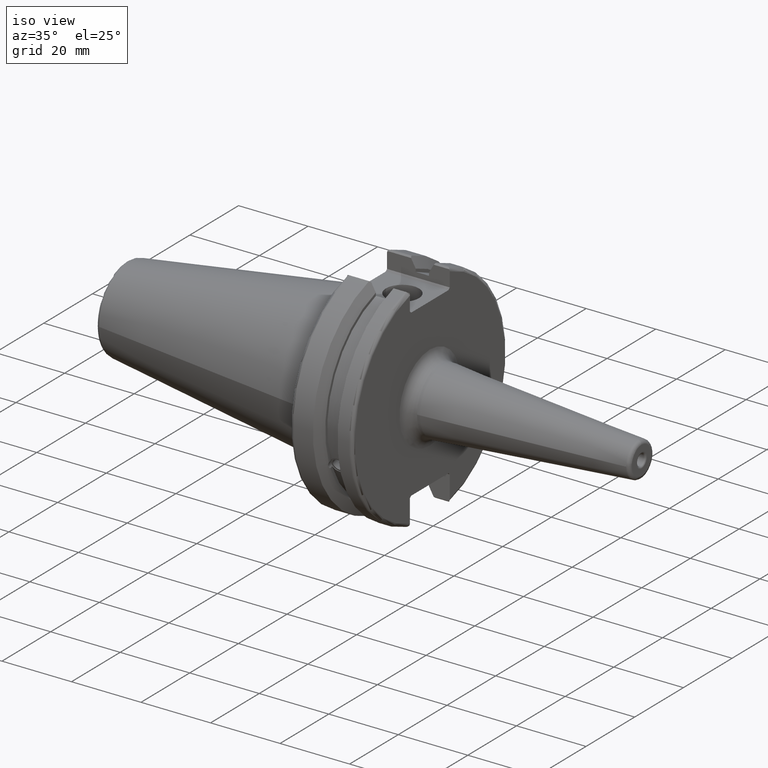
[diagram: clean part render]
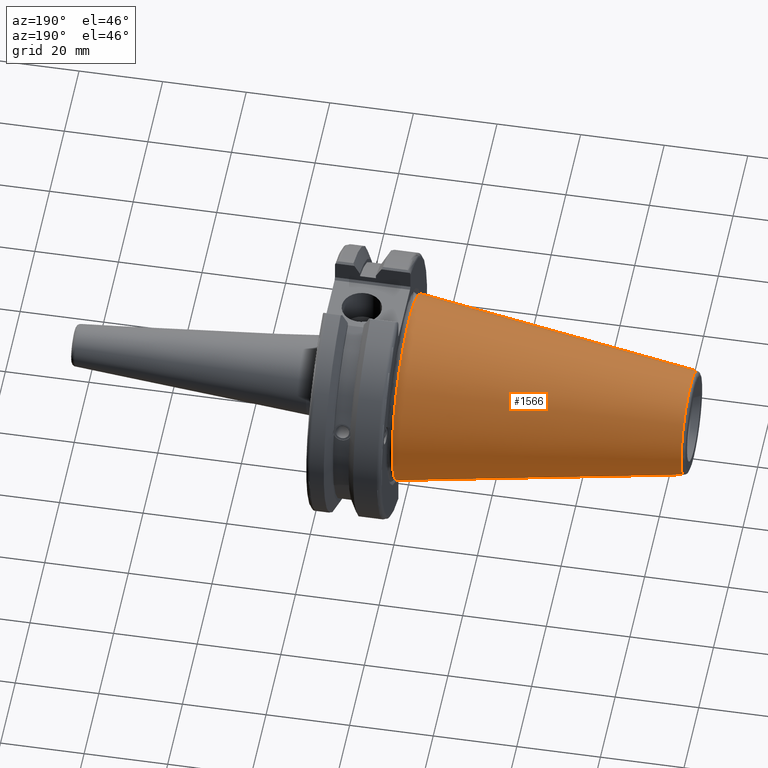
[diagram: tour spotlight — one face highlighted and labeled with its STEP entity id]
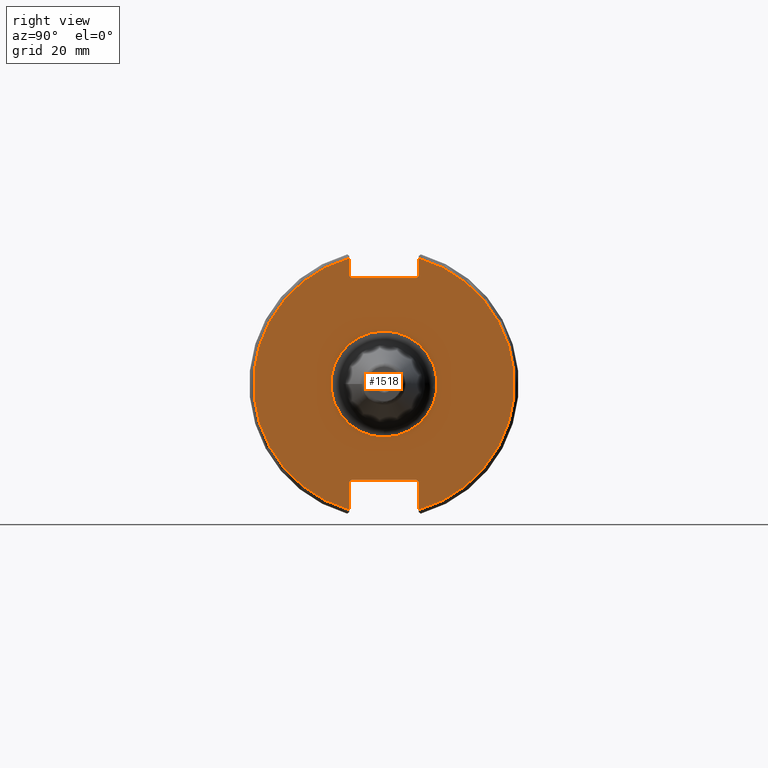
[diagram: tour spotlight — one face highlighted and labeled with its STEP entity id]
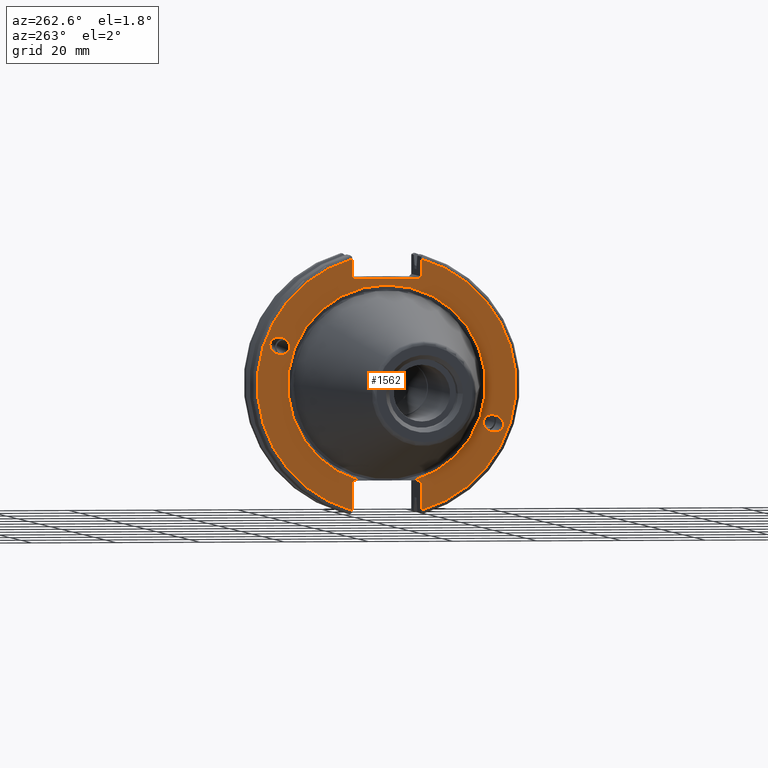
[diagram: tour spotlight — one face highlighted and labeled with its STEP entity id]
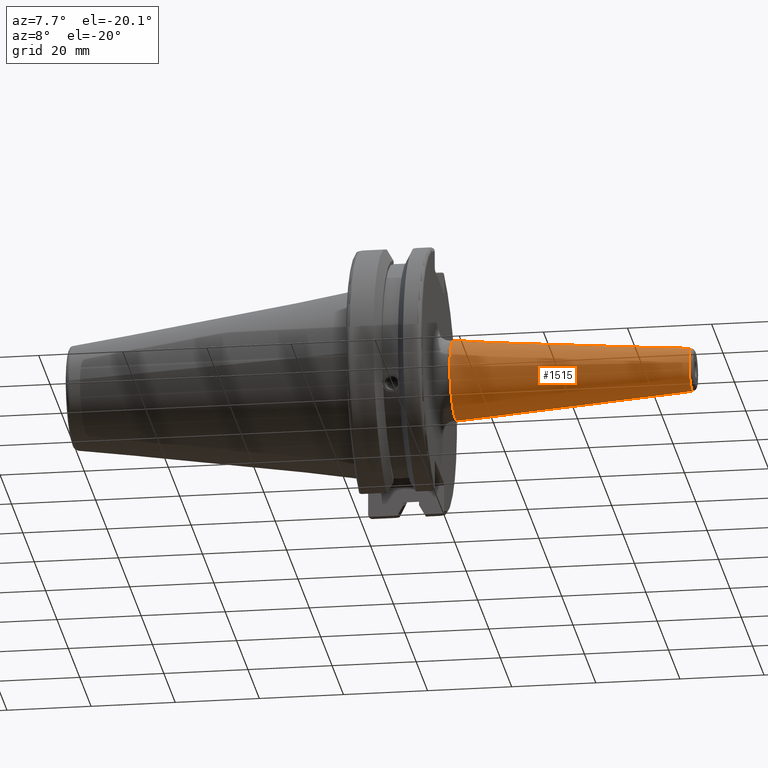
[diagram: tour spotlight — one face highlighted and labeled with its STEP entity id]
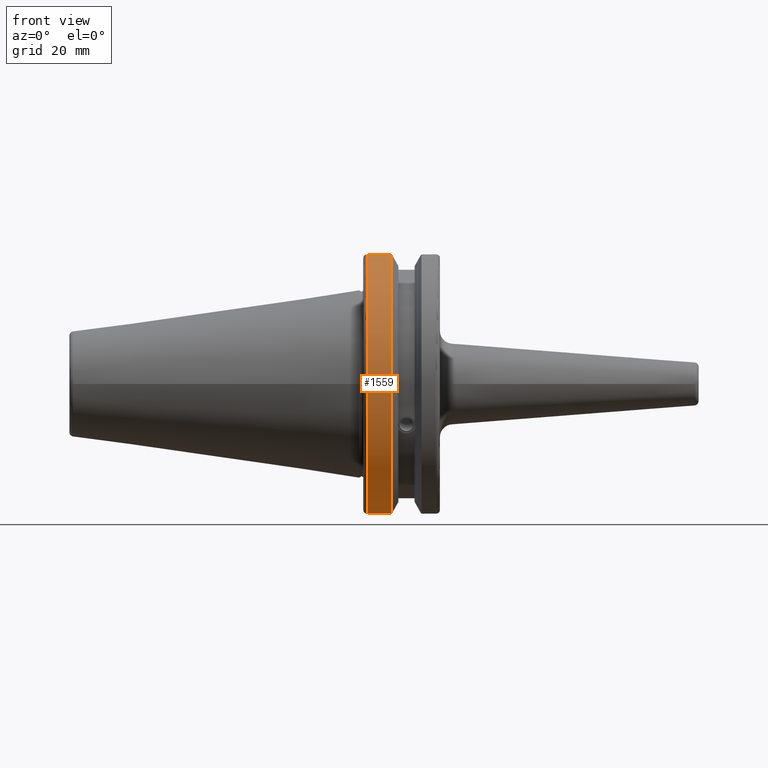
[diagram: tour spotlight — one face highlighted and labeled with its STEP entity id]
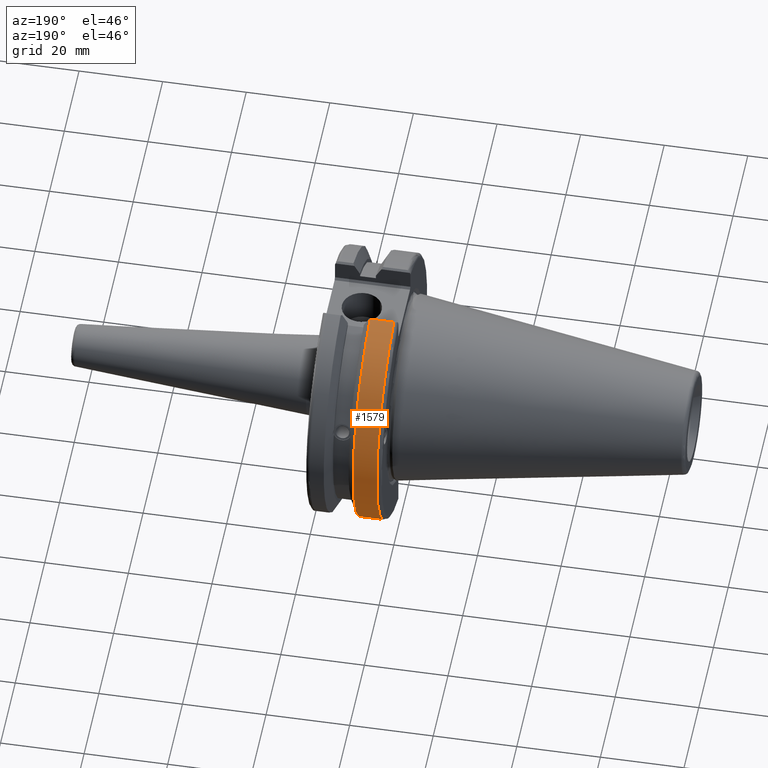
[diagram: tour spotlight — one face highlighted and labeled with its STEP entity id]
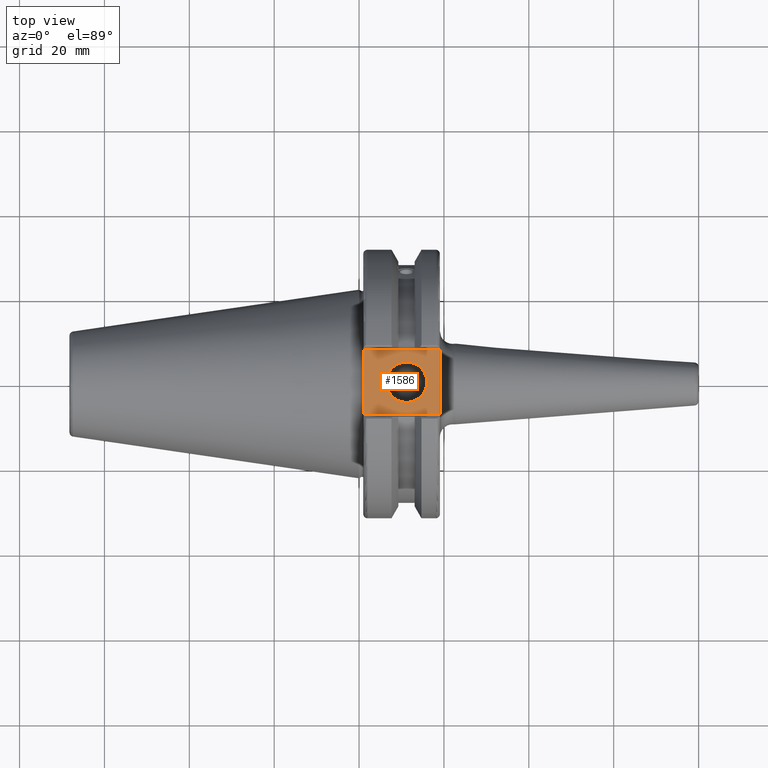
[diagram: tour spotlight — one face highlighted and labeled with its STEP entity id]
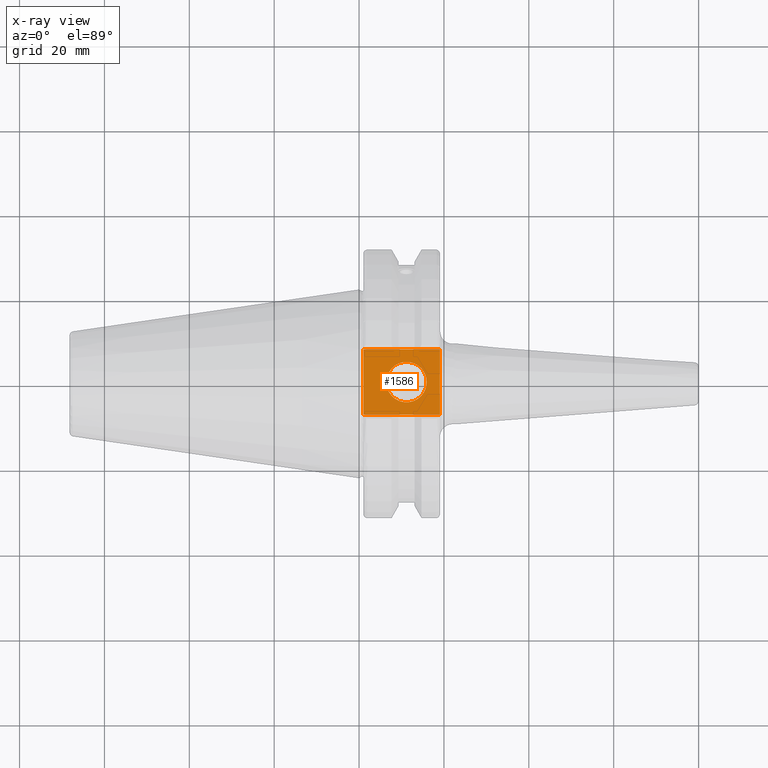
[diagram: x-ray of the same camera — body ghosted, this tour face saturated]
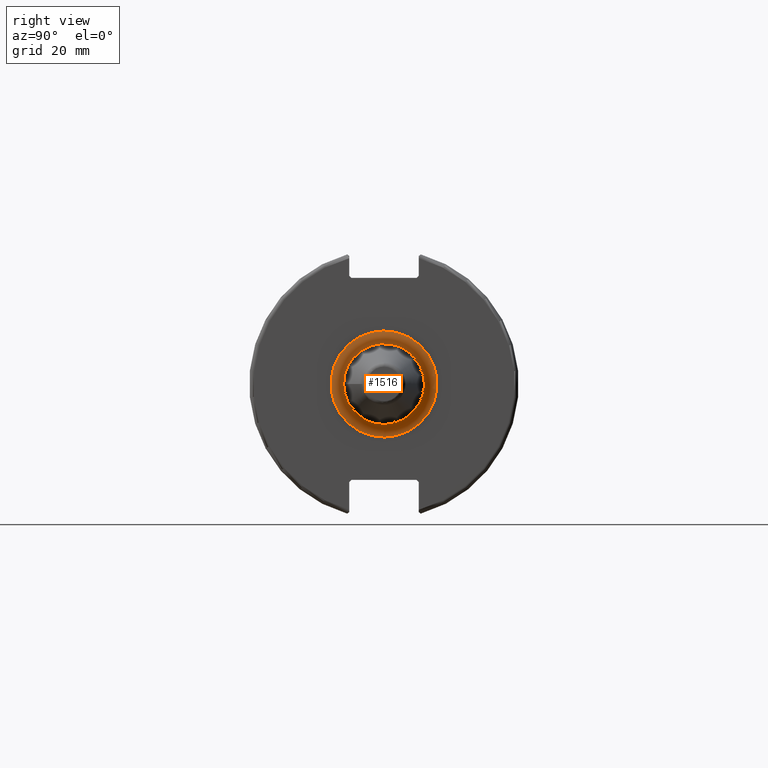
[diagram: tour spotlight — one face highlighted and labeled with its STEP entity id]
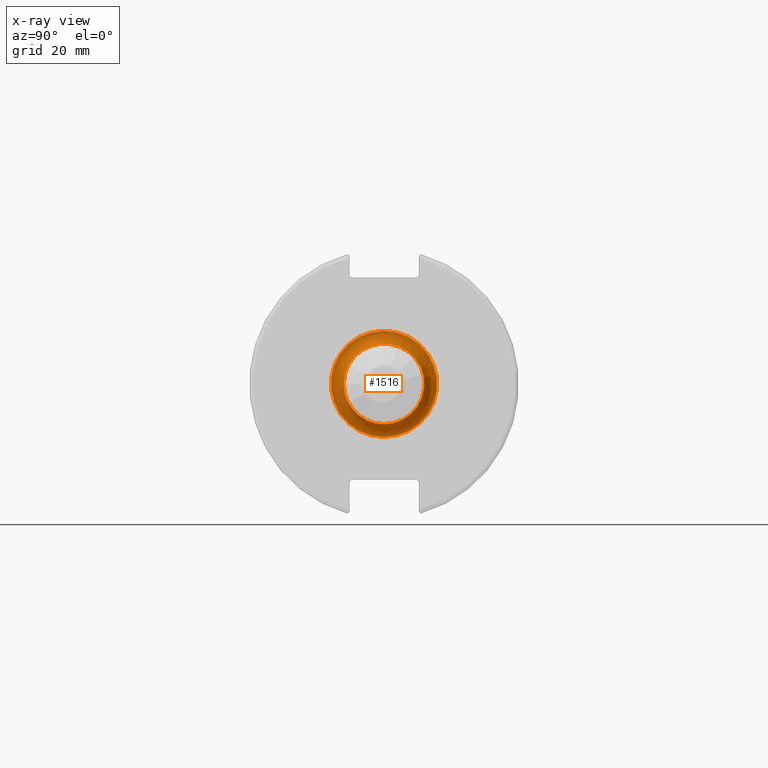
[diagram: x-ray of the same camera — body ghosted, this tour face saturated]
A machine part: a face-by-face anatomy tour. The part has 88 B-rep faces; the first image is the clean iso view, then the 8 largest visible faces are spotlighted one at a time (largest first), each with its STEP entity span.

Face 1 — auxiliary view, entity #1566. In plain terms, the highlighted conical surface has half-angle 8.297 deg.
Definition (entity closure, byte-faithful):
#89=CONICAL_SURFACE('',#1753,17.2484375,0.144812498238939);
#170=LINE('',#2958,#266);
#266=VECTOR('',#2146,17.2484375);
#421=FACE_OUTER_BOUND('',#520,.T.);
#520=EDGE_LOOP('',(#1349,#1350,#1351,#1352,#1353));
#609=CIRCLE('',#1747,12.3966635780937);
#610=CIRCLE('',#1748,12.3966635780937);
#614=CIRCLE('',#1754,22.225);
#767=VERTEX_POINT('',#2945);
#768=VERTEX_POINT('',#2946);
#771=VERTEX_POINT('',#2956);
#977=EDGE_CURVE('',#767,#768,#609,.T.);
#978=EDGE_CURVE('',#768,#767,#610,.T.);
#982=EDGE_CURVE('',#771,#771,#614,.T.);
#983=EDGE_CURVE('',#771,#768,#170,.T.);
#1349=ORIENTED_EDGE('',*,*,#982,.F.);
#1350=ORIENTED_EDGE('',*,*,#983,.T.);
#1351=ORIENTED_EDGE('',*,*,#977,.F.);
#1352=ORIENTED_EDGE('',*,*,#978,.F.);
#1353=ORIENTED_EDGE('',*,*,#983,.F.);
#1566=ADVANCED_FACE('',(#421),#89,.T.);
#1747=AXIS2_PLACEMENT_3D('',#2947,#2130,#2131);
#1748=AXIS2_PLACEMENT_3D('',#2948,#2132,#2133);
#1753=AXIS2_PLACEMENT_3D('',#2955,#2142,#2143);
#1754=AXIS2_PLACEMENT_3D('',#2957,#2144,#2145);
#2130=DIRECTION('center_axis',(-1.,0.,0.));
#2131=DIRECTION('ref_axis',(0.,-1.,3.06161699786838E-17));
#2132=DIRECTION('center_axis',(-1.,0.,0.));
#2133=DIRECTION('ref_axis',(0.,-1.,3.06161699786838E-17));
#2142=DIRECTION('center_axis',(1.,0.,0.));
#2143=DIRECTION('ref_axis',(0.,1.,0.));
#2144=DIRECTION('center_axis',(1.,0.,0.));
#2145=DIRECTION('ref_axis',(0.,0.,-1.));
#2146=DIRECTION('',(-0.989532981063282,0.144306893071729,1.76724974695192E-17));
#2945=CARTESIAN_POINT('',(-67.3943068930717,-1.5181534371019E-15,12.3966635780937));
#2946=CARTESIAN_POINT('',(-67.3943068930718,-12.3966635780937,-1.5181534371019E-15));
#2947=CARTESIAN_POINT('Origin',(-67.3943068930717,0.,-1.89769179637738E-15));
#2948=CARTESIAN_POINT('Origin',(-67.3943068930717,0.,-1.89769179637738E-15));
#2955=CARTESIAN_POINT('Origin',(-34.125,0.,0.));
#2956=CARTESIAN_POINT('',(0.,-22.225,-2.72177751110499E-15));
#2957=CARTESIAN_POINT('Origin',(0.,0.,0.));
#2958=CARTESIAN_POINT('',(-34.125,-17.2484375,-2.11232437746682E-15));

Face 2 — right view, entity #1518. In plain terms, the highlighted planar face has unit normal (1, 0, 0).
Definition (entity closure, byte-faithful):
#99=LINE('',#2307,#195);
#100=LINE('',#2309,#196);
#101=LINE('',#2311,#197);
#102=LINE('',#2313,#198);
#103=LINE('',#2315,#199);
#104=LINE('',#2319,#200);
#105=LINE('',#2321,#201);
#106=LINE('',#2323,#202);
#107=LINE('',#2325,#203);
#108=LINE('',#2326,#204);
#195=VECTOR('',#1855,10.);
#196=VECTOR('',#1856,10.);
#197=VECTOR('',#1857,10.);
#198=VECTOR('',#1858,10.);
#199=VECTOR('',#1859,10.);
#200=VECTOR('',#1862,10.);
#201=VECTOR('',#1863,10.);
#202=VECTOR('',#1864,10.);
#203=VECTOR('',#1865,10.);
#204=VECTOR('',#1866,10.);
#317=FACE_BOUND('',#463,.T.);
#331=PLANE('',#1643);
#373=FACE_OUTER_BOUND('',#462,.T.);
#462=EDGE_LOOP('',(#1058,#1059,#1060,#1061,#1062,#1063,#1064,#1065,#1066,
#1067,#1068,#1069));
#463=EDGE_LOOP('',(#1070));
#568=CIRCLE('',#1640,12.5);
#570=CIRCLE('',#1644,30.75);
#571=CIRCLE('',#1645,30.75);
#642=VERTEX_POINT('',#2296);
#643=VERTEX_POINT('',#2303);
#644=VERTEX_POINT('',#2304);
#645=VERTEX_POINT('',#2306);
#646=VERTEX_POINT('',#2308);
#647=VERTEX_POINT('',#2310);
#648=VERTEX_POINT('',#2312);
#649=VERTEX_POINT('',#2314);
#650=VERTEX_POINT('',#2316);
#651=VERTEX_POINT('',#2318);
#652=VERTEX_POINT('',#2320);
#653=VERTEX_POINT('',#2322);
#654=VERTEX_POINT('',#2324);
#802=EDGE_CURVE('',#642,#642,#568,.T.);
#805=EDGE_CURVE('',#643,#644,#570,.T.);
#806=EDGE_CURVE('',#643,#645,#99,.T.);
#807=EDGE_CURVE('',#646,#645,#100,.T.);
#808=EDGE_CURVE('',#646,#647,#101,.T.);
#809=EDGE_CURVE('',#648,#647,#102,.T.);
#810=EDGE_CURVE('',#648,#649,#103,.T.);
#811=EDGE_CURVE('',#650,#649,#571,.T.);
#812=EDGE_CURVE('',#650,#651,#104,.T.);
#813=EDGE_CURVE('',#652,#651,#105,.T.);
#814=EDGE_CURVE('',#652,#653,#106,.T.);
#815=EDGE_CURVE('',#654,#653,#107,.T.);
#816=EDGE_CURVE('',#654,#644,#108,.T.);
#1058=ORIENTED_EDGE('',*,*,#805,.F.);
#1059=ORIENTED_EDGE('',*,*,#806,.T.);
#1060=ORIENTED_EDGE('',*,*,#807,.F.);
#1061=ORIENTED_EDGE('',*,*,#808,.T.);
#1062=ORIENTED_EDGE('',*,*,#809,.F.);
#1063=ORIENTED_EDGE('',*,*,#810,.T.);
#1064=ORIENTED_EDGE('',*,*,#811,.F.);
#1065=ORIENTED_EDGE('',*,*,#812,.T.);
#1066=ORIENTED_EDGE('',*,*,#813,.F.);
#1067=ORIENTED_EDGE('',*,*,#814,.T.);
#1068=ORIENTED_EDGE('',*,*,#815,.F.);
#1069=ORIENTED_EDGE('',*,*,#816,.T.);
#1070=ORIENTED_EDGE('',*,*,#802,.F.);
#1518=ADVANCED_FACE('',(#373,#317),#331,.T.);
#1640=AXIS2_PLACEMENT_3D('',#2298,#1844,#1845);
#1643=AXIS2_PLACEMENT_3D('',#2302,#1851,#1852);
#1644=AXIS2_PLACEMENT_3D('',#2305,#1853,#1854);
#1645=AXIS2_PLACEMENT_3D('',#2317,#1860,#1861);
#1844=DIRECTION('center_axis',(1.,0.,0.));
#1845=DIRECTION('ref_axis',(0.,-1.,-1.22464679914735E-16));
#1851=DIRECTION('center_axis',(1.,0.,0.));
#1852=DIRECTION('ref_axis',(0.,0.,-1.));
#1853=DIRECTION('center_axis',(-1.,0.,0.));
#1854=DIRECTION('ref_axis',(0.,1.,-6.12323399573677E-17));
#1855=DIRECTION('',(0.,0.,-1.));
#1856=DIRECTION('',(0.,0.707106781186549,0.707106781186546));
#1857=DIRECTION('',(0.,-1.,0.));
#1858=DIRECTION('',(0.,0.70710678118655,-0.707106781186545));
#1859=DIRECTION('',(0.,0.,1.));
#1860=DIRECTION('center_axis',(-1.,0.,0.));
#1861=DIRECTION('ref_axis',(0.,-1.,1.60812264967664E-16));
#1862=DIRECTION('',(0.,0.,1.));
#1863=DIRECTION('',(0.,-0.707106781186549,-0.707106781186546));
#1864=DIRECTION('',(0.,1.,0.));
#1865=DIRECTION('',(0.,-0.707106781186549,0.707106781186546));
#1866=DIRECTION('',(0.,0.,-1.));
#2296=CARTESIAN_POINT('',(19.05,-1.53080849893419E-15,-12.5));
#2298=CARTESIAN_POINT('Origin',(19.05,0.,0.));
#2302=CARTESIAN_POINT('Origin',(19.05,0.,0.));
#2303=CARTESIAN_POINT('',(19.05,8.19,29.6392712461019));
#2304=CARTESIAN_POINT('',(19.05,8.19,-29.6392712461019));
#2305=CARTESIAN_POINT('Origin',(19.05,0.,0.));
#2306=CARTESIAN_POINT('',(19.05,8.19,25.5));
#2307=CARTESIAN_POINT('',(19.05,8.19,12.5));
#2308=CARTESIAN_POINT('',(19.05,7.69,25.));
#2309=CARTESIAN_POINT('',(19.05,-0.35750000000001,16.9525));
#2310=CARTESIAN_POINT('',(19.05,-7.69,25.));
#2311=CARTESIAN_POINT('',(19.05,0.,25.));
#2312=CARTESIAN_POINT('',(19.05,-8.19,25.5));
#2313=CARTESIAN_POINT('',(19.05,0.357500000000014,16.9525));
#2314=CARTESIAN_POINT('',(19.05,-8.19,29.6392712461019));
#2315=CARTESIAN_POINT('',(19.05,-8.19,12.5));
#2316=CARTESIAN_POINT('',(19.05,-8.19,-29.6392712461019));
#2317=CARTESIAN_POINT('Origin',(19.05,0.,0.));
#2318=CARTESIAN_POINT('',(19.05,-8.19,-23.1));
#2319=CARTESIAN_POINT('',(19.05,-8.19,-11.3));
#2320=CARTESIAN_POINT('',(19.05,-7.69,-22.6));
#2321=CARTESIAN_POINT('',(19.05,-0.242499999999991,-15.1525));
#2322=CARTESIAN_POINT('',(19.05,7.69,-22.6));
#2323=CARTESIAN_POINT('',(19.05,-2.77555756156289E-16,-22.6));
#2324=CARTESIAN_POINT('',(19.05,8.19,-23.1));
#2325=CARTESIAN_POINT('',(19.05,0.242499999999989,-15.1525));
#2326=CARTESIAN_POINT('',(19.05,8.19,-11.3));

Face 3 — auxiliary view, entity #1562. In plain terms, the highlighted planar face has unit normal (-1, 0, 0).
Definition (entity closure, byte-faithful):
#41=ELLIPSE('',#1677,2.4415491775229,1.99999999999999);
#50=ELLIPSE('',#1720,2.4415491775229,1.99999999999999);
#146=LINE('',#2773,#242);
#149=LINE('',#2823,#245);
#157=LINE('',#2859,#253);
#161=LINE('',#2927,#257);
#162=LINE('',#2929,#258);
#163=LINE('',#2931,#259);
#164=LINE('',#2932,#260);
#165=LINE('',#2934,#261);
#166=LINE('',#2936,#262);
#167=LINE('',#2940,#263);
#168=LINE('',#2941,#264);
#242=VECTOR('',#2070,10.);
#245=VECTOR('',#2079,10.);
#253=VECTOR('',#2089,10.);
#257=VECTOR('',#2115,10.);
#258=VECTOR('',#2116,10.);
#259=VECTOR('',#2117,10.);
#260=VECTOR('',#2118,10.);
#261=VECTOR('',#2119,10.);
#262=VECTOR('',#2120,10.);
#263=VECTOR('',#2123,10.);
#264=VECTOR('',#2124,10.);
#324=FACE_BOUND('',#514,.T.);
#325=FACE_BOUND('',#515,.T.);
#346=PLANE('',#1743);
#417=FACE_OUTER_BOUND('',#513,.T.);
#513=EDGE_LOOP('',(#1322,#1323,#1324,#1325,#1326,#1327,#1328,#1329,#1330,
#1331,#1332,#1333,#1334,#1335));
#514=EDGE_LOOP('',(#1336));
#515=EDGE_LOOP('',(#1337));
#604=CIRCLE('',#1735,30.75);
#607=CIRCLE('',#1742,30.75);
#608=CIRCLE('',#1744,23.5);
#685=VERTEX_POINT('',#2533);
#725=VERTEX_POINT('',#2716);
#734=VERTEX_POINT('',#2770);
#735=VERTEX_POINT('',#2772);
#741=VERTEX_POINT('',#2820);
#742=VERTEX_POINT('',#2822);
#750=VERTEX_POINT('',#2851);
#751=VERTEX_POINT('',#2858);
#759=VERTEX_POINT('',#2917);
#760=VERTEX_POINT('',#2926);
#761=VERTEX_POINT('',#2928);
#762=VERTEX_POINT('',#2930);
#763=VERTEX_POINT('',#2933);
#764=VERTEX_POINT('',#2935);
#765=VERTEX_POINT('',#2937);
#766=VERTEX_POINT('',#2939);
#859=EDGE_CURVE('',#685,#685,#41,.T.);
#915=EDGE_CURVE('',#725,#725,#50,.T.);
#929=EDGE_CURVE('',#735,#734,#146,.T.);
#939=EDGE_CURVE('',#742,#741,#149,.T.);
#951=EDGE_CURVE('',#751,#750,#157,.T.);
#956=EDGE_CURVE('',#742,#750,#604,.T.);
#965=EDGE_CURVE('',#735,#759,#607,.T.);
#967=EDGE_CURVE('',#760,#741,#161,.T.);
#968=EDGE_CURVE('',#760,#761,#162,.T.);
#969=EDGE_CURVE('',#762,#761,#163,.T.);
#970=EDGE_CURVE('',#762,#759,#164,.T.);
#971=EDGE_CURVE('',#763,#734,#165,.T.);
#972=EDGE_CURVE('',#763,#764,#166,.T.);
#973=EDGE_CURVE('',#764,#765,#608,.T.);
#974=EDGE_CURVE('',#765,#766,#167,.T.);
#975=EDGE_CURVE('',#751,#766,#168,.T.);
#1322=ORIENTED_EDGE('',*,*,#956,.F.);
#1323=ORIENTED_EDGE('',*,*,#939,.T.);
#1324=ORIENTED_EDGE('',*,*,#967,.F.);
#1325=ORIENTED_EDGE('',*,*,#968,.T.);
#1326=ORIENTED_EDGE('',*,*,#969,.F.);
#1327=ORIENTED_EDGE('',*,*,#970,.T.);
#1328=ORIENTED_EDGE('',*,*,#965,.F.);
#1329=ORIENTED_EDGE('',*,*,#929,.T.);
#1330=ORIENTED_EDGE('',*,*,#971,.F.);
#1331=ORIENTED_EDGE('',*,*,#972,.T.);
#1332=ORIENTED_EDGE('',*,*,#973,.T.);
#1333=ORIENTED_EDGE('',*,*,#974,.T.);
#1334=ORIENTED_EDGE('',*,*,#975,.F.);
#1335=ORIENTED_EDGE('',*,*,#951,.T.);
#1336=ORIENTED_EDGE('',*,*,#859,.T.);
#1337=ORIENTED_EDGE('',*,*,#915,.T.);
#1562=ADVANCED_FACE('',(#417,#324,#325),#346,.T.);
#1677=AXIS2_PLACEMENT_3D('',#2535,#1944,#1945);
#1720=AXIS2_PLACEMENT_3D('',#2718,#2047,#2048);
#1735=AXIS2_PLACEMENT_3D('',#2881,#2095,#2096);
#1742=AXIS2_PLACEMENT_3D('',#2918,#2111,#2112);
#1743=AXIS2_PLACEMENT_3D('',#2925,#2113,#2114);
#1744=AXIS2_PLACEMENT_3D('',#2938,#2121,#2122);
#1944=DIRECTION('center_axis',(1.,0.,0.));
#1945=DIRECTION('ref_axis',(0.,-0.939692620785908,-0.342020143325669));
#2047=DIRECTION('center_axis',(1.,0.,0.));
#2048=DIRECTION('ref_axis',(0.,0.939692620785908,0.342020143325669));
#2070=DIRECTION('',(0.,0.,1.));
#2079=DIRECTION('',(0.,0.,-1.));
#2089=DIRECTION('',(0.,0.,-1.));
#2095=DIRECTION('center_axis',(1.,0.,0.));
#2096=DIRECTION('ref_axis',(0.,-1.,1.60812264967664E-16));
#2111=DIRECTION('center_axis',(1.,0.,0.));
#2112=DIRECTION('ref_axis',(0.,1.,1.60812264967664E-16));
#2113=DIRECTION('center_axis',(-1.,0.,0.));
#2114=DIRECTION('ref_axis',(0.,0.,1.));
#2115=DIRECTION('',(0.,-0.70710678118655,0.707106781186545));
#2116=DIRECTION('',(0.,1.,0.));
#2117=DIRECTION('',(0.,-0.707106781186549,-0.707106781186546));
#2118=DIRECTION('',(0.,0.,1.));
#2119=DIRECTION('',(0.,0.707106781186549,-0.707106781186546));
#2120=DIRECTION('',(0.,-1.,0.));
#2121=DIRECTION('center_axis',(1.,0.,0.));
#2122=DIRECTION('ref_axis',(0.,0.,-1.));
#2123=DIRECTION('',(0.,-1.,0.));
#2124=DIRECTION('',(0.,0.707106781186549,0.707106781186546));
#2533=CARTESIAN_POINT('',(1.,-23.0773950158154,-8.39948487016));
#2535=CARTESIAN_POINT('Origin',(1.,-25.3717007612195,-9.23454386979305));
#2716=CARTESIAN_POINT('',(1.,23.0773950158154,8.39948487016001));
#2718=CARTESIAN_POINT('Origin',(1.,25.3717007612195,9.23454386979306));
#2770=CARTESIAN_POINT('',(1.,8.18999999999999,-23.1));
#2772=CARTESIAN_POINT('',(1.,8.18999999999999,-29.6392712461019));
#2773=CARTESIAN_POINT('',(1.,8.18999999999999,-11.3));
#2820=CARTESIAN_POINT('',(1.,-8.18999999999999,25.5));
#2822=CARTESIAN_POINT('',(1.,-8.18999999999999,29.6392712461019));
#2823=CARTESIAN_POINT('',(1.,-8.18999999999999,12.5));
#2851=CARTESIAN_POINT('',(1.,-8.19,-29.6392712461019));
#2858=CARTESIAN_POINT('',(1.,-8.19,-23.1));
#2859=CARTESIAN_POINT('',(1.,-8.19,-11.3));
#2881=CARTESIAN_POINT('Origin',(1.,0.,0.));
#2917=CARTESIAN_POINT('',(1.,8.19,29.6392712461019));
#2918=CARTESIAN_POINT('Origin',(1.,0.,0.));
#2925=CARTESIAN_POINT('Origin',(1.,31.75,0.));
#2926=CARTESIAN_POINT('',(1.,-7.68999999999999,25.));
#2927=CARTESIAN_POINT('',(1.,8.29500000000007,9.01500000000004));
#2928=CARTESIAN_POINT('',(1.,7.69,25.));
#2929=CARTESIAN_POINT('',(1.,15.875,25.));
#2930=CARTESIAN_POINT('',(1.,8.19,25.5));
#2931=CARTESIAN_POINT('',(1.,7.58000000000002,24.89));
#2932=CARTESIAN_POINT('',(1.,8.19,12.5));
#2933=CARTESIAN_POINT('',(1.,7.69,-22.6));
#2934=CARTESIAN_POINT('',(0.999999999999999,8.18000000000002,-23.09));
#2935=CARTESIAN_POINT('',(0.999999999999997,6.4412731660752,-22.6));
#2936=CARTESIAN_POINT('',(1.,15.875,-22.6));
#2937=CARTESIAN_POINT('',(1.,-6.44127316607517,-22.6));
#2938=CARTESIAN_POINT('Origin',(0.999999999999996,0.,0.));
#2939=CARTESIAN_POINT('',(1.,-7.69,-22.6));
#2940=CARTESIAN_POINT('',(1.,15.875,-22.6));
#2941=CARTESIAN_POINT('',(1.,7.69500000000004,-7.21500000000002));

Face 4 — auxiliary view, entity #1515. In plain terms, the highlighted conical surface has half-angle 4.5 deg.
Definition (entity closure, byte-faithful):
#81=CONICAL_SURFACE('',#1635,7.25000000000001,0.0785398163397453);
#97=LINE('',#2290,#193);
#193=VECTOR('',#1835,7.25000000000001);
#370=FACE_OUTER_BOUND('',#459,.T.);
#459=EDGE_LOOP('',(#1043,#1044,#1045,#1046,#1047));
#563=CIRCLE('',#1633,5.07252684207494);
#564=CIRCLE('',#1634,5.07252684207494);
#565=CIRCLE('',#1636,9.5);
#637=VERTEX_POINT('',#2283);
#638=VERTEX_POINT('',#2285);
#639=VERTEX_POINT('',#2289);
#796=EDGE_CURVE('',#637,#638,#563,.T.);
#797=EDGE_CURVE('',#638,#637,#564,.T.);
#798=EDGE_CURVE('',#638,#639,#97,.T.);
#799=EDGE_CURVE('',#639,#639,#565,.T.);
#1043=ORIENTED_EDGE('',*,*,#797,.F.);
#1044=ORIENTED_EDGE('',*,*,#798,.T.);
#1045=ORIENTED_EDGE('',*,*,#799,.T.);
#1046=ORIENTED_EDGE('',*,*,#798,.F.);
#1047=ORIENTED_EDGE('',*,*,#796,.F.);
#1515=ADVANCED_FACE('',(#370),#81,.T.);
#1633=AXIS2_PLACEMENT_3D('',#2286,#1829,#1830);
#1634=AXIS2_PLACEMENT_3D('',#2287,#1831,#1832);
#1635=AXIS2_PLACEMENT_3D('',#2288,#1833,#1834);
#1636=AXIS2_PLACEMENT_3D('',#2291,#1836,#1837);
#1829=DIRECTION('center_axis',(1.,0.,0.));
#1830=DIRECTION('ref_axis',(0.,-1.,3.06161699786838E-17));
#1831=DIRECTION('center_axis',(1.,0.,0.));
#1832=DIRECTION('ref_axis',(0.,-1.,3.06161699786838E-17));
#1833=DIRECTION('center_axis',(-1.,0.,0.));
#1834=DIRECTION('ref_axis',(0.,1.,0.));
#1835=DIRECTION('',(-0.996917333733128,-0.0784590957278454,-9.60846804471017E-18));
#1836=DIRECTION('center_axis',(1.,0.,0.));
#1837=DIRECTION('ref_axis',(0.,0.,-1.));
#2283=CARTESIAN_POINT('',(79.0784590957279,-6.2120537607361E-16,5.07252684207493));
#2285=CARTESIAN_POINT('',(79.0784590957279,-5.07252684207494,-6.2120537607361E-16));
#2286=CARTESIAN_POINT('Origin',(79.0784590957279,0.,-7.76506720092013E-16));
#2287=CARTESIAN_POINT('Origin',(79.0784590957279,0.,-7.76506720092013E-16));
#2288=CARTESIAN_POINT('Origin',(51.4110393436072,0.,0.));
#2289=CARTESIAN_POINT('',(22.8220786872144,-9.5,-1.16341445918999E-15));
#2290=CARTESIAN_POINT('',(51.4110393436072,-7.25000000000001,-8.87868929381832E-16));
#2291=CARTESIAN_POINT('Origin',(22.8220786872144,0.,0.));

Face 5 — front view, entity #1559. In plain terms, the highlighted cylindrical surface (partial cylindrical patch) has radius 31.75 mm, axis along (1, 0, 0).
Definition (entity closure, byte-faithful):
#159=LINE('',#2884,#255);
#160=LINE('',#2890,#256);
#255=VECTOR('',#2099,10.);
#256=VECTOR('',#2102,10.);
#307=CYLINDRICAL_SURFACE('',#1737,31.75);
#414=FACE_OUTER_BOUND('',#510,.T.);
#510=EDGE_LOOP('',(#1308,#1309,#1310,#1311));
#603=CIRCLE('',#1734,31.75);
#605=CIRCLE('',#1738,31.75);
#752=VERTEX_POINT('',#2862);
#753=VERTEX_POINT('',#2871);
#754=VERTEX_POINT('',#2883);
#755=VERTEX_POINT('',#2889);
#954=EDGE_CURVE('',#752,#753,#603,.T.);
#957=EDGE_CURVE('',#753,#754,#159,.T.);
#959=EDGE_CURVE('',#755,#752,#160,.T.);
#960=EDGE_CURVE('',#754,#755,#605,.T.);
#1308=ORIENTED_EDGE('',*,*,#954,.F.);
#1309=ORIENTED_EDGE('',*,*,#959,.F.);
#1310=ORIENTED_EDGE('',*,*,#960,.F.);
#1311=ORIENTED_EDGE('',*,*,#957,.F.);
#1559=ADVANCED_FACE('',(#414),#307,.T.);
#1734=AXIS2_PLACEMENT_3D('',#2872,#2093,#2094);
#1737=AXIS2_PLACEMENT_3D('',#2888,#2100,#2101);
#1738=AXIS2_PLACEMENT_3D('',#2891,#2103,#2104);
#2093=DIRECTION('center_axis',(-1.,0.,0.));
#2094=DIRECTION('ref_axis',(0.,-1.,1.60812264967664E-16));
#2099=DIRECTION('',(1.,0.,0.));
#2100=DIRECTION('center_axis',(1.,0.,0.));
#2101=DIRECTION('ref_axis',(0.,-1.,1.22464679914735E-16));
#2102=DIRECTION('',(-1.,0.,0.));
#2103=DIRECTION('center_axis',(1.,0.,0.));
#2104=DIRECTION('ref_axis',(0.,0.,-1.));
#2862=CARTESIAN_POINT('',(2.,-8.67204822802685,-30.5427254764662));
#2871=CARTESIAN_POINT('',(2.,-8.67204822802685,30.5427254764662));
#2872=CARTESIAN_POINT('Origin',(2.,0.,0.));
#2883=CARTESIAN_POINT('',(7.64983323092436,-8.67204822802685,30.5427254764662));
#2884=CARTESIAN_POINT('',(4.32491661546218,-8.67204822802685,30.5427254764662));
#2888=CARTESIAN_POINT('Origin',(4.32491661546218,0.,0.));
#2889=CARTESIAN_POINT('',(7.64983323092436,-8.67204822802685,-30.5427254764662));
#2890=CARTESIAN_POINT('',(4.32491661546218,-8.67204822802685,-30.5427254764662));
#2891=CARTESIAN_POINT('Origin',(7.64983323092436,0.,0.));

Face 6 — auxiliary view, entity #1579. In plain terms, the highlighted cylindrical surface (partial cylindrical patch) has radius 31.75 mm, axis along (1, 0, 0).
Definition (entity closure, byte-faithful):
#169=LINE('',#2943,#265);
#185=LINE('',#3005,#281);
#265=VECTOR('',#2127,10.);
#281=VECTOR('',#2187,10.);
#310=CYLINDRICAL_SURFACE('',#1768,31.75);
#434=FACE_OUTER_BOUND('',#533,.T.);
#533=EDGE_LOOP('',(#1414,#1415,#1416,#1417));
#592=CIRCLE('',#1706,31.75);
#606=CIRCLE('',#1741,31.75);
#715=VERTEX_POINT('',#2678);
#716=VERTEX_POINT('',#2682);
#757=VERTEX_POINT('',#2898);
#758=VERTEX_POINT('',#2907);
#900=EDGE_CURVE('',#715,#716,#592,.T.);
#963=EDGE_CURVE('',#757,#758,#606,.T.);
#976=EDGE_CURVE('',#758,#715,#169,.T.);
#1003=EDGE_CURVE('',#716,#757,#185,.T.);
#1414=ORIENTED_EDGE('',*,*,#963,.F.);
#1415=ORIENTED_EDGE('',*,*,#1003,.F.);
#1416=ORIENTED_EDGE('',*,*,#900,.F.);
#1417=ORIENTED_EDGE('',*,*,#976,.F.);
#1579=ADVANCED_FACE('',(#434),#310,.T.);
#1706=AXIS2_PLACEMENT_3D('',#2683,#2013,#2014);
#1741=AXIS2_PLACEMENT_3D('',#2908,#2109,#2110);
#1768=AXIS2_PLACEMENT_3D('',#3006,#2188,#2189);
#2013=DIRECTION('center_axis',(1.,0.,0.));
#2014=DIRECTION('ref_axis',(0.,0.,-1.));
#2109=DIRECTION('center_axis',(-1.,0.,0.));
#2110=DIRECTION('ref_axis',(0.,1.,1.60812264967664E-16));
#2127=DIRECTION('',(1.,0.,0.));
#2187=DIRECTION('',(-1.,0.,0.));
#2188=DIRECTION('center_axis',(1.,0.,0.));
#2189=DIRECTION('ref_axis',(0.,1.,0.));
#2678=CARTESIAN_POINT('',(7.64983323092436,8.67204822802685,-30.5427254764662));
#2682=CARTESIAN_POINT('',(7.64983323092436,8.67204822802685,30.5427254764662));
#2683=CARTESIAN_POINT('Origin',(7.64983323092436,0.,0.));
#2898=CARTESIAN_POINT('',(2.,8.67204822802685,30.5427254764662));
#2907=CARTESIAN_POINT('',(2.,8.67204822802685,-30.5427254764662));
#2908=CARTESIAN_POINT('Origin',(2.,0.,0.));
#2943=CARTESIAN_POINT('',(4.32491661546218,8.67204822802685,-30.5427254764662));
#3005=CARTESIAN_POINT('',(4.32491661546218,8.67204822802685,30.5427254764662));
#3006=CARTESIAN_POINT('Origin',(4.32491661546218,0.,0.));

Face 7 — top view, entity #1586. An x-ray twin of the same camera follows (body ghosted, this face saturated) — the face is partly hidden behind the body. In plain terms, the highlighted planar face has unit normal (0, 0, 1).
Definition (entity closure, byte-faithful):
#101=LINE('',#2311,#197);
#162=LINE('',#2929,#258);
#174=LINE('',#2974,#270);
#176=LINE('',#2977,#272);
#197=VECTOR('',#1857,10.);
#258=VECTOR('',#2116,10.);
#270=VECTOR('',#2158,10.);
#272=VECTOR('',#2162,10.);
#327=FACE_BOUND('',#541,.T.);
#361=PLANE('',#1780);
#441=FACE_OUTER_BOUND('',#540,.T.);
#540=EDGE_LOOP('',(#1446,#1447,#1448,#1449));
#541=EDGE_LOOP('',(#1450));
#617=CIRCLE('',#1772,4.7625);
#646=VERTEX_POINT('',#2308);
#647=VERTEX_POINT('',#2310);
#760=VERTEX_POINT('',#2926);
#761=VERTEX_POINT('',#2928);
#781=VERTEX_POINT('',#3013);
#808=EDGE_CURVE('',#646,#647,#101,.T.);
#968=EDGE_CURVE('',#760,#761,#162,.T.);
#989=EDGE_CURVE('',#647,#760,#174,.T.);
#991=EDGE_CURVE('',#761,#646,#176,.T.);
#1006=EDGE_CURVE('',#781,#781,#617,.T.);
#1446=ORIENTED_EDGE('',*,*,#989,.F.);
#1447=ORIENTED_EDGE('',*,*,#808,.F.);
#1448=ORIENTED_EDGE('',*,*,#991,.F.);
#1449=ORIENTED_EDGE('',*,*,#968,.F.);
#1450=ORIENTED_EDGE('',*,*,#1006,.T.);
#1586=ADVANCED_FACE('',(#441,#327),#361,.T.);
#1772=AXIS2_PLACEMENT_3D('',#3014,#2197,#2198);
#1780=AXIS2_PLACEMENT_3D('',#3023,#2214,#2215);
#1857=DIRECTION('',(0.,-1.,0.));
#2116=DIRECTION('',(0.,1.,0.));
#2158=DIRECTION('',(-1.,1.16558847729675E-16,0.));
#2162=DIRECTION('',(1.,0.,0.));
#2197=DIRECTION('center_axis',(0.,0.,-1.));
#2198=DIRECTION('ref_axis',(1.,0.,0.));
#2214=DIRECTION('center_axis',(0.,0.,1.));
#2215=DIRECTION('ref_axis',(1.,0.,0.));
#2308=CARTESIAN_POINT('',(19.05,7.69,25.));
#2310=CARTESIAN_POINT('',(19.05,-7.69,25.));
#2311=CARTESIAN_POINT('',(19.05,0.,25.));
#2926=CARTESIAN_POINT('',(1.,-7.68999999999999,25.));
#2928=CARTESIAN_POINT('',(1.,7.69,25.));
#2929=CARTESIAN_POINT('',(1.,15.875,25.));
#2974=CARTESIAN_POINT('',(7.81,-7.69,25.));
#2977=CARTESIAN_POINT('',(17.335,7.69,25.));
#3013=CARTESIAN_POINT('',(6.4135,-5.83238038093927E-16,25.));
#3014=CARTESIAN_POINT('Origin',(11.176,0.,25.));
#3023=CARTESIAN_POINT('Origin',(14.62,0.,25.));

Face 8 — right view, entity #1516. An x-ray twin of the same camera follows (body ghosted, this face saturated) — the face is partly hidden behind the body. In plain terms, the highlighted toroidal blend (fillet) surface has major radius 12.5 mm and minor (blend) radius 3 mm.
Definition (entity closure, byte-faithful):
#371=FACE_OUTER_BOUND('',#460,.T.);
#460=EDGE_LOOP('',(#1048,#1049,#1050,#1051,#1052));
#566=CIRCLE('',#1638,9.5);
#567=CIRCLE('',#1639,3.);
#568=CIRCLE('',#1640,12.5);
#569=CIRCLE('',#1641,9.5);
#640=VERTEX_POINT('',#2293);
#641=VERTEX_POINT('',#2294);
#642=VERTEX_POINT('',#2296);
#800=EDGE_CURVE('',#640,#641,#566,.T.);
#801=EDGE_CURVE('',#641,#642,#567,.T.);
#802=EDGE_CURVE('',#642,#642,#568,.T.);
#803=EDGE_CURVE('',#641,#640,#569,.T.);
#1048=ORIENTED_EDGE('',*,*,#800,.T.);
#1049=ORIENTED_EDGE('',*,*,#801,.T.);
#1050=ORIENTED_EDGE('',*,*,#802,.T.);
#1051=ORIENTED_EDGE('',*,*,#801,.F.);
#1052=ORIENTED_EDGE('',*,*,#803,.T.);
#1504=TOROIDAL_SURFACE('',#1637,12.5,3.);
#1516=ADVANCED_FACE('',(#371),#1504,.F.);
#1637=AXIS2_PLACEMENT_3D('',#2292,#1838,#1839);
#1638=AXIS2_PLACEMENT_3D('',#2295,#1840,#1841);
#1639=AXIS2_PLACEMENT_3D('',#2297,#1842,#1843);
#1640=AXIS2_PLACEMENT_3D('',#2298,#1844,#1845);
#1641=AXIS2_PLACEMENT_3D('',#2299,#1846,#1847);
#1838=DIRECTION('center_axis',(-1.,0.,0.));
#1839=DIRECTION('ref_axis',(0.,0.,1.));
#1840=DIRECTION('center_axis',(-1.,0.,0.));
#1841=DIRECTION('ref_axis',(0.,-1.,-1.22464679914735E-16));
#1842=DIRECTION('center_axis',(0.,-1.,1.22464679914735E-16));
#1843=DIRECTION('ref_axis',(0.,-1.22464679914735E-16,-1.));
#1844=DIRECTION('center_axis',(1.,0.,0.));
#1845=DIRECTION('ref_axis',(0.,-1.,-1.22464679914735E-16));
#1846=DIRECTION('center_axis',(-1.,0.,0.));
#1847=DIRECTION('ref_axis',(0.,-1.,-1.22464679914735E-16));
#2292=CARTESIAN_POINT('Origin',(22.05,0.,0.));
#2293=CARTESIAN_POINT('',(22.05,-9.5,-1.16341445918999E-15));
#2294=CARTESIAN_POINT('',(22.05,-1.16341445918999E-15,-9.5));
#2295=CARTESIAN_POINT('Origin',(22.05,0.,0.));
#2296=CARTESIAN_POINT('',(19.05,-1.53080849893419E-15,-12.5));
#2297=CARTESIAN_POINT('Origin',(22.05,-1.53080849893419E-15,-12.5));
#2298=CARTESIAN_POINT('Origin',(19.05,0.,0.));
#2299=CARTESIAN_POINT('Origin',(22.05,0.,0.));